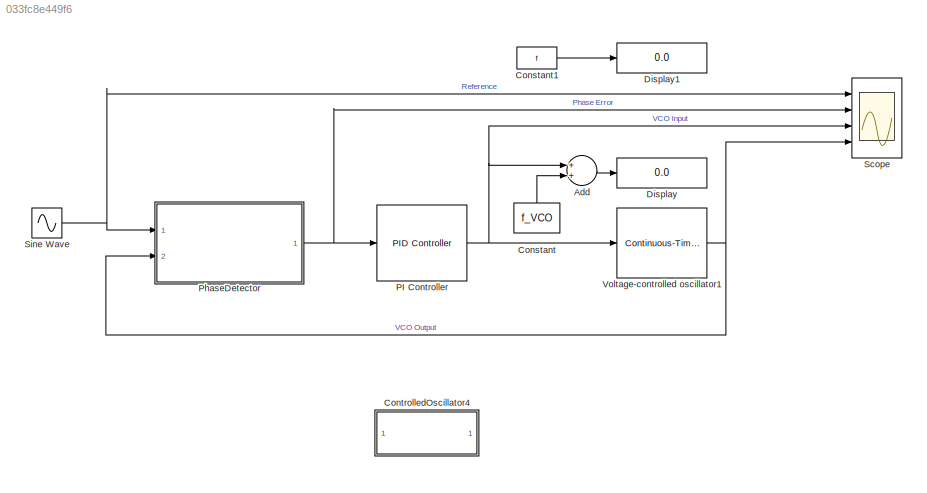
MODEL slx_033fc8e449f6
KIND model
CONFIG InitFcn = PhaseLockedLoop_Initialization
BLOCK [Sum] Add
  InputSameDT = off
  OutDataTypeStr = Inherit: Inherit via internal rule
  Ports = [2, 1]
  SaturateOnIntegerOverflow = off
BLOCK [Constant] Constant
  Value = f_VCO
BLOCK [Constant] Constant1
  Value = f
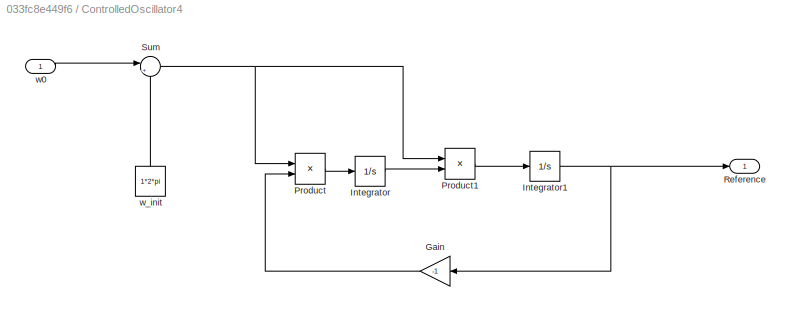
BLOCK [SubSystem] ControlledOscillator4
  Commented = on
  Ports = [1, 1]
  RequestExecContextInheritance = off
BLOCK [Gain] ControlledOscillator4/Gain
  Gain = -1
  OutDataTypeStr = Inherit: Inherit via internal rule
  ParamDataTypeStr = Inherit: Inherit via internal rule
  SaturateOnIntegerOverflow = off
BLOCK [Integrator] ControlledOscillator4/Integrator
  Ports = [1, 1]
BLOCK [Integrator] ControlledOscillator4/Integrator1
  Ports = [1, 1]
BLOCK [Product] ControlledOscillator4/Product
  InputSameDT = off
  OutDataTypeStr = Inherit: Inherit via internal rule
  Ports = [2, 1]
  RndMeth = Floor
  SaturateOnIntegerOverflow = off
BLOCK [Product] ControlledOscillator4/Product1
  InputSameDT = off
  OutDataTypeStr = Inherit: Inherit via internal rule
  Ports = [2, 1]
  RndMeth = Floor
  SaturateOnIntegerOverflow = off
BLOCK [Outport] ControlledOscillator4/Reference
  IconDisplay = Port number
BLOCK [Sum] ControlledOscillator4/Sum
  IconShape = round
  InputSameDT = off
  Inputs = |++
  OutDataTypeStr = Inherit: Inherit via internal rule
  Ports = [2, 1]
  SaturateOnIntegerOverflow = off
BLOCK [Inport] ControlledOscillator4/w0
  IconDisplay = Port number
BLOCK [Constant] ControlledOscillator4/w_init
  Value = 1*2*pi
BLOCK [Display] Display
  Decimation = 1
  Ports = [1]
BLOCK [Display] Display1
  Decimation = 1
  Ports = [1]
BLOCK [Reference] PI Controller  REF=simulink/Continuous/PID Controller
  AntiWindupMode = none
  Controller = PI
  D = 0.1
  DOutDataTypeStr = Inherit: Inherit via internal rule
  DOutMax = []
  DOutMin = []
  DParamDataTypeStr = Inherit: Inherit via internal rule
  DParamMax = []
  DParamMin = []
  DifferentiatorICPrevScaledInput = 0
  DifferentiatorOutDataTypeStr = Inherit: Inherit via internal rule
  DifferentiatorOutMax = []
  DifferentiatorOutMin = []
  ExternalReset = none
  FilterContinuousStateAttributes = ''
  FilterMethod = Forward Euler
  FilterOutDataTypeStr = Inherit: Inherit via internal rule
  FilterOutMax = []
  FilterOutMin = []
  FilterRTWStateStorageClass = Auto
  FilterStateMustResolveToSignalObject = off
  Form = Parallel
  I = 0.8
  IOutDataTypeStr = Inherit: Inherit via internal rule
  IOutMax = []
  IOutMin = []
  IParamDataTypeStr = Inherit: Inherit via internal rule
  IParamMax = []
  IParamMin = []
  IgnoreLimit = off
  InitialConditionForFilter = 0
  InitialConditionForIntegrator = 0
  InitialConditionSource = internal
  IntegratorContinuousStateAttributes = ''
  IntegratorMethod = Forward Euler
  IntegratorOutDataTypeStr = Inherit: Inherit via internal rule
  IntegratorOutMax = []
  IntegratorOutMin = []
  IntegratorRTWStateStorageClass = Auto
  IntegratorStateMustResolveToSignalObject = off
  Kb = 1
  KbOutDataTypeStr = Inherit: Inherit via internal rule
  KbOutMax = []
  KbOutMin = []
  KbParamDataTypeStr = Inherit: Inherit via internal rule
  KbParamMax = []
  KbParamMin = []
  Kt = 1
  KtOutDataTypeStr = Inherit: Inherit via internal rule
  KtOutMax = []
  KtOutMin = []
  KtParamDataTypeStr = Inherit: Inherit via internal rule
  KtParamMax = []
  KtParamMin = []
  LimitOutput = off
  LinearizeAsGain = on
  LockScale = off
  LowerSaturationLimit = -inf
  N = 100
  NOutDataTypeStr = Inherit: Inherit via internal rule
  NOutMax = []
  NOutMin = []
  NParamDataTypeStr = Inherit: Inherit via internal rule
  NParamMax = []
  NParamMin = []
  P = 1.5
  POutDataTypeStr = Inherit: Inherit via internal rule
  POutMax = []
  POutMin = []
  PParamDataTypeStr = Inherit: Inherit via internal rule
  PParamMax = []
  PParamMin = []
  Ports = [1, 1]
  RndMeth = Floor
  SampleTime = -1
  SaturateOnIntegerOverflow = off
  SaturationOutDataTypeStr = Inherit: Same as input
  SaturationOutMax = []
  SaturationOutMin = []
  SourceBlock = simulink/Continuous/PID Controller
  SourceType = PID 1dof
  SumAccumDataTypeStr = Inherit: Inherit via internal rule
  SumDAccumDataTypeStr = Inherit: Inherit via internal rule
  SumDOutDataTypeStr = Inherit: Inherit via internal rule
  SumDOutMax = []
  SumDOutMin = []
  SumI1AccumDataTypeStr = Inherit: Inherit via internal rule
  SumI1OutDataTypeStr = Inherit: Inherit via internal rule
  SumI1OutMax = []
  SumI1OutMin = []
  SumI2AccumDataTypeStr = Inherit: Inherit via internal rule
  SumI2OutDataTypeStr = Inherit: Inherit via internal rule
  SumI2OutMax = []
  SumI2OutMin = []
  SumI3AccumDataTypeStr = Inherit: Inherit via internal rule
  SumI3OutDataTypeStr = Inherit: Inherit via internal rule
  SumI3OutMax = []
  SumI3OutMin = []
  SumOutDataTypeStr = Inherit: Inherit via internal rule
  SumOutMax = []
  SumOutMin = []
  TimeDomain = Continuous-time
  TrackingMode = off
  UpperSaturationLimit = inf
  UseFilter = on
  ZeroCross = on
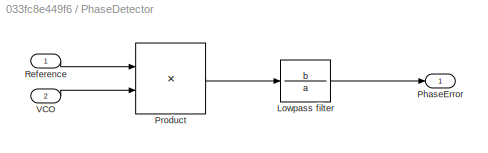
BLOCK [SubSystem] PhaseDetector
  Ports = [2, 1]
  RequestExecContextInheritance = off
BLOCK [TransferFcn] PhaseDetector/Lowpass filter
  Denominator = a
  Numerator = b
BLOCK [Outport] PhaseDetector/PhaseError
  IconDisplay = Port number
BLOCK [Product] PhaseDetector/Product
  InputSameDT = off
  OutDataTypeStr = Inherit: Inherit via internal rule
  Ports = [2, 1]
  RndMeth = Floor
  SaturateOnIntegerOverflow = off
BLOCK [Inport] PhaseDetector/Reference
  IconDisplay = Port number
BLOCK [Inport] PhaseDetector/VCO
  IconDisplay = Port number
  Port = 2
BLOCK [Scope] Scope
  Floating = off
  LimitDataPoints = off
  NumInputPorts = 4
  Ports = [4]
  ShowLegends = off
  TimeRange = 8
  YMax = 5~4.66071~5~5
  YMin = -5~0.660714~-5~-5
BLOCK [Sin] Sine Wave
  Frequency = f*2*pi
  Ports = [0, 1]
  SampleTime = 0
BLOCK [Reference] Voltage-controlled oscillator1  REF=commsynccomp2/Continuous-Time
VCO
  Ac = 1
  Fc = f_VCO
  Kc = 1
  Ph = 0
  Ports = [1, 1]
  SourceBlock = commsynccomp2/Continuous-Time\nVCO
  SourceType = Continuous-Time VCO
LINE Add:1 -> Display:1
LINE Constant1:1 -> Display1:1
LINE Constant:1 -> Add:2
LINE ControlledOscillator4/Gain:1 -> ControlledOscillator4/Product:2
NET ControlledOscillator4/Integrator1:1 -> ControlledOscillator4/Gain:1, ControlledOscillator4/Reference:1
LINE ControlledOscillator4/Integrator:1 -> ControlledOscillator4/Product1:2
LINE ControlledOscillator4/Product1:1 -> ControlledOscillator4/Integrator1:1
LINE ControlledOscillator4/Product:1 -> ControlledOscillator4/Integrator:1
NET ControlledOscillator4/Sum:1 -> ControlledOscillator4/Product1:1, ControlledOscillator4/Product:1
LINE ControlledOscillator4/w0:1 -> ControlledOscillator4/Sum:1
LINE ControlledOscillator4/w_init:1 -> ControlledOscillator4/Sum:2
NET PI Controller:1 -> Add:1, Scope:3, Voltage-controlled oscillator1:1
LINE PhaseDetector/Lowpass filter:1 -> PhaseDetector/PhaseError:1
LINE PhaseDetector/Product:1 -> PhaseDetector/Lowpass filter:1
LINE PhaseDetector/Reference:1 -> PhaseDetector/Product:1
LINE PhaseDetector/VCO:1 -> PhaseDetector/Product:2
NET PhaseDetector:1 -> PI Controller:1, Scope:2
NET Sine Wave:1 -> PhaseDetector:1, Scope:1
NET Voltage-controlled oscillator1:1 -> PhaseDetector:2, Scope:4
note: NET lines group one-source signal fan-out (src -> all destinations, sorted); 1:1 wires keep LINE
